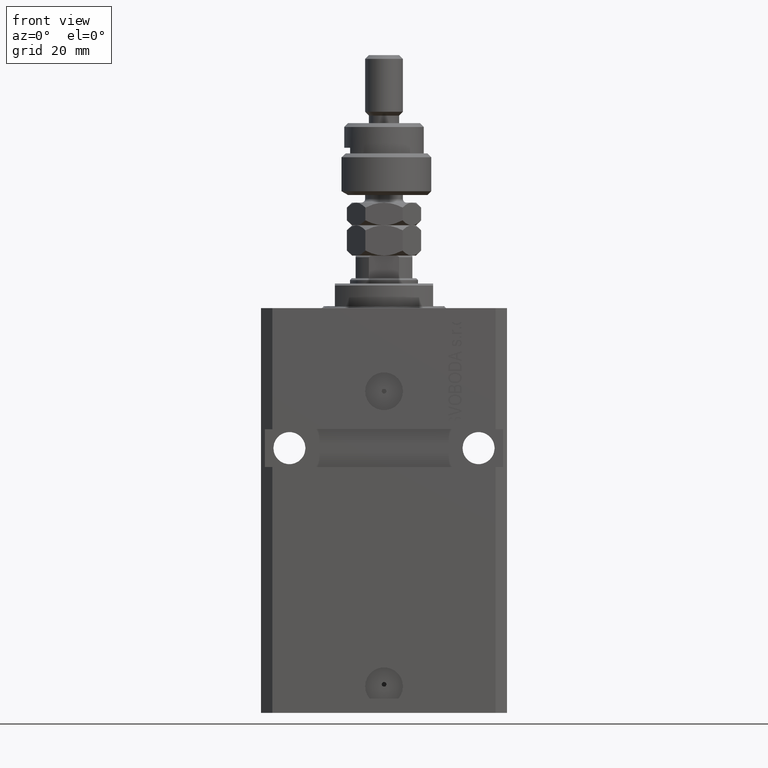
[diagram: clean part render]
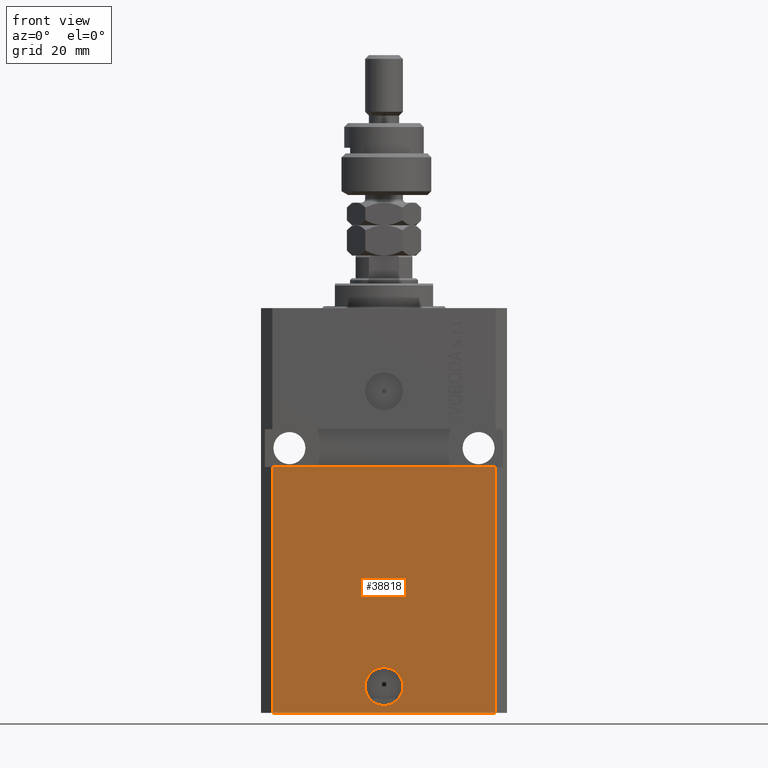
[diagram: same view with one face highlighted and labeled with its STEP entity id]
A machine part, front view. The second image highlights one B-rep face of the part: STEP entity #38818.
In plain terms, the highlighted planar face has unit normal (0, -1, 0).
Its self-contained STEP definition (entity closure, byte-faithful):
#515 = DIRECTION ( 'NONE',  ( 1.000000000000000000, 1.067522139062765303E-16, 1.067522139062765303E-16 ) ) ;
#4398 = EDGE_LOOP ( 'NONE', ( #33449, #40065, #40789, #19095 ) ) ;
#6707 = CARTESIAN_POINT ( 'NONE',  ( -29.49999999999650413, -22.49999999999949907, -107.0000000000000000 ) ) ;
#7423 = DIRECTION ( 'NONE',  ( 0.000000000000000000, 0.000000000000000000, 1.000000000000000000 ) ) ;
#7800 = DIRECTION ( 'NONE',  ( 1.000000000000000000, 0.000000000000000000, 0.000000000000000000 ) ) ;
#10493 = CARTESIAN_POINT ( 'NONE',  ( -29.49999999999650413, -22.49999999999949907, -107.0000000000000000 ) ) ;
#12148 = CARTESIAN_POINT ( 'NONE',  ( -32.49999999999650413, -22.49999999999949907, -41.99999999999999289 ) ) ;
#13539 = FACE_BOUND ( 'NONE', #18678, .T. ) ;
#14075 = VERTEX_POINT ( 'NONE', #32547 ) ;
#14282 = DIRECTION ( 'NONE',  ( 1.176083712526788232E-16, -1.000000000000000000, 0.000000000000000000 ) ) ;
#14571 = AXIS2_PLACEMENT_3D ( 'NONE', #49748, #42169, #7800 ) ;
#14764 = LINE ( 'NONE', #30161, #22592 ) ;
#15520 = AXIS2_PLACEMENT_3D ( 'NONE', #10493, #14282, #25389 ) ;
#18678 = EDGE_LOOP ( 'NONE', ( #18827, #21486 ) ) ;
#18827 = ORIENTED_EDGE ( 'NONE', *, *, #27236, .F. ) ;
#19095 = ORIENTED_EDGE ( 'NONE', *, *, #45890, .T. ) ;
#20748 = AXIS2_PLACEMENT_3D ( 'NONE', #46536, #38237, #31146 ) ;
#21486 = ORIENTED_EDGE ( 'NONE', *, *, #38161, .F. ) ;
#22592 = VECTOR ( 'NONE', #7423, 1000.000000000000000 ) ;
#23972 = VECTOR ( 'NONE', #515, 1000.000000000000000 ) ;
#25389 = DIRECTION ( 'NONE',  ( 1.000000000000000000, 1.176083712526788232E-16, 0.000000000000000000 ) ) ;
#25435 = VERTEX_POINT ( 'NONE', #43434 ) ;
#25749 = LINE ( 'NONE', #28792, #48319 ) ;
#27020 = VERTEX_POINT ( 'NONE', #45857 ) ;
#27184 = CIRCLE ( 'NONE', #20748, 5.000000000000006217 ) ;
#27236 = EDGE_CURVE ( 'NONE', #39868, #25435, #27184, .T. ) ;
#28792 = CARTESIAN_POINT ( 'NONE',  ( -29.49999999999650413, -22.49999999999949907, -107.0000000000000000 ) ) ;
#28934 = FACE_OUTER_BOUND ( 'NONE', #4398, .T. ) ;
#29044 = DIRECTION ( 'NONE',  ( 1.000000000000000000, 1.176083712526788232E-16, 0.000000000000000000 ) ) ;
#30161 = CARTESIAN_POINT ( 'NONE',  ( 29.49999999999650413, -22.49999999999949196, -107.0000000000000000 ) ) ;
#30849 = LINE ( 'NONE', #12148, #23972 ) ;
#31146 = DIRECTION ( 'NONE',  ( 1.000000000000000000, 0.000000000000000000, 0.000000000000000000 ) ) ;
#31616 = EDGE_CURVE ( 'NONE', #14075, #31689, #30849, .T. ) ;
#31689 = VERTEX_POINT ( 'NONE', #44177 ) ;
#32547 = CARTESIAN_POINT ( 'NONE',  ( -29.49999999999650413, -22.49999999999949907, -41.99999999999999289 ) ) ;
#33449 = ORIENTED_EDGE ( 'NONE', *, *, #31616, .F. ) ;
#33845 = EDGE_CURVE ( 'NONE', #27020, #46335, #25749, .T. ) ;
#35546 = CIRCLE ( 'NONE', #14571, 5.000000000000006217 ) ;
#35726 = CARTESIAN_POINT ( 'NONE',  ( 5.000000000000008882, -22.49999999999949551, -99.99999999999998579 ) ) ;
#38161 = EDGE_CURVE ( 'NONE', #25435, #39868, #35546, .T. ) ;
#38237 = DIRECTION ( 'NONE',  ( 1.176083712526788232E-16, -1.000000000000000000, 0.000000000000000000 ) ) ;
#38818 = ADVANCED_FACE ( 'NONE', ( #13539, #28934 ), #44333, .T. ) ;
#39868 = VERTEX_POINT ( 'NONE', #35726 ) ;
#40065 = ORIENTED_EDGE ( 'NONE', *, *, #45005, .F. ) ;
#40789 = ORIENTED_EDGE ( 'NONE', *, *, #33845, .T. ) ;
#42169 = DIRECTION ( 'NONE',  ( 1.176083712526788232E-16, -1.000000000000000000, 0.000000000000000000 ) ) ;
#43434 = CARTESIAN_POINT ( 'NONE',  ( -5.000000000000003553, -22.49999999999949551, -99.99999999999998579 ) ) ;
#44177 = CARTESIAN_POINT ( 'NONE',  ( 29.49999999999650058, -22.49999999999949196, -41.99999999999998579 ) ) ;
#44333 = PLANE ( 'NONE',  #15520 ) ;
#44761 = CARTESIAN_POINT ( 'NONE',  ( 29.49999999999650413, -22.49999999999949196, -107.0000000000000000 ) ) ;
#44837 = LINE ( 'NONE', #6707, #45120 ) ;
#45005 = EDGE_CURVE ( 'NONE', #27020, #14075, #44837, .T. ) ;
#45120 = VECTOR ( 'NONE', #48887, 1000.000000000000000 ) ;
#45857 = CARTESIAN_POINT ( 'NONE',  ( -29.49999999999650413, -22.49999999999949907, -107.0000000000000000 ) ) ;
#45890 = EDGE_CURVE ( 'NONE', #46335, #31689, #14764, .T. ) ;
#46335 = VERTEX_POINT ( 'NONE', #44761 ) ;
#46536 = CARTESIAN_POINT ( 'NONE',  ( 2.646188353185214061E-15, -22.49999999999949551, -99.99999999999998579 ) ) ;
#48319 = VECTOR ( 'NONE', #29044, 1000.000000000000000 ) ;
#48887 = DIRECTION ( 'NONE',  ( 0.000000000000000000, 0.000000000000000000, 1.000000000000000000 ) ) ;
#49748 = CARTESIAN_POINT ( 'NONE',  ( 2.646188353185214061E-15, -22.49999999999949551, -99.99999999999998579 ) ) ;